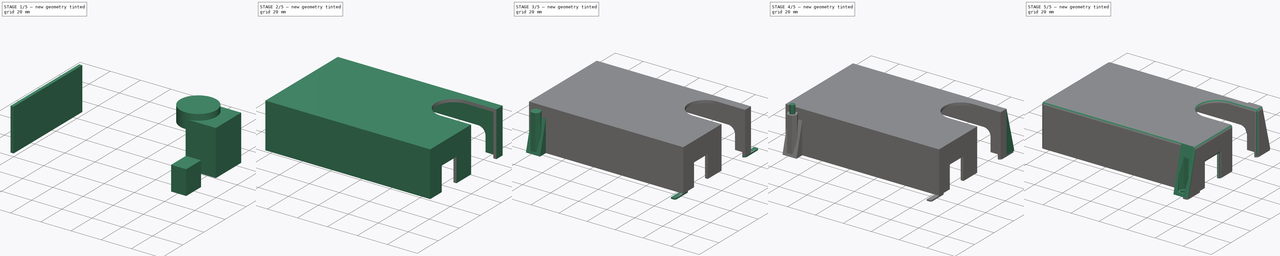
[diagram: build sequence overview — one tinted view per stage of 5, left to right]
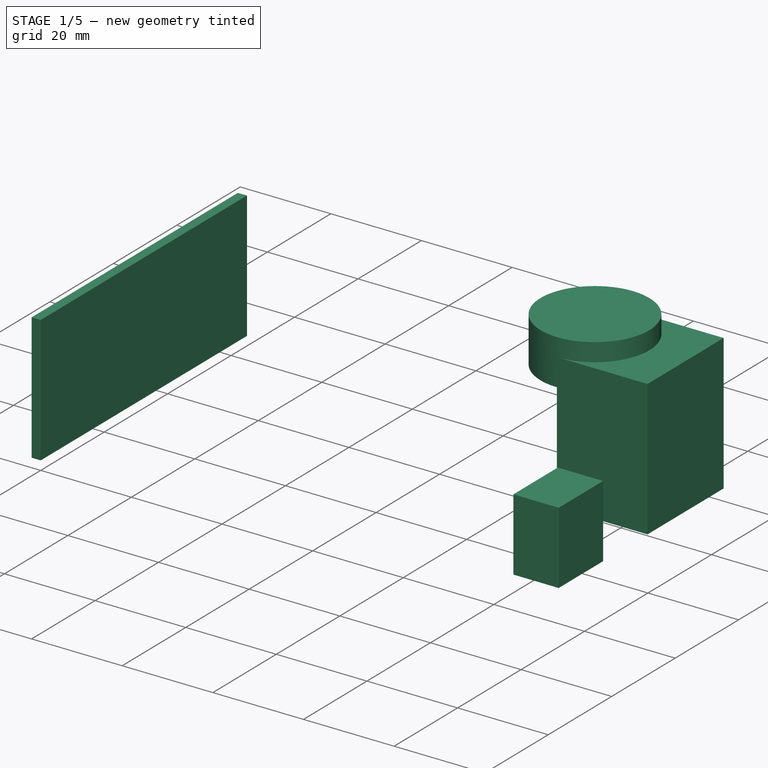
[diagram: stage 1 of 5 — iso view after this stage's code; geometry added in this stage tinted green]
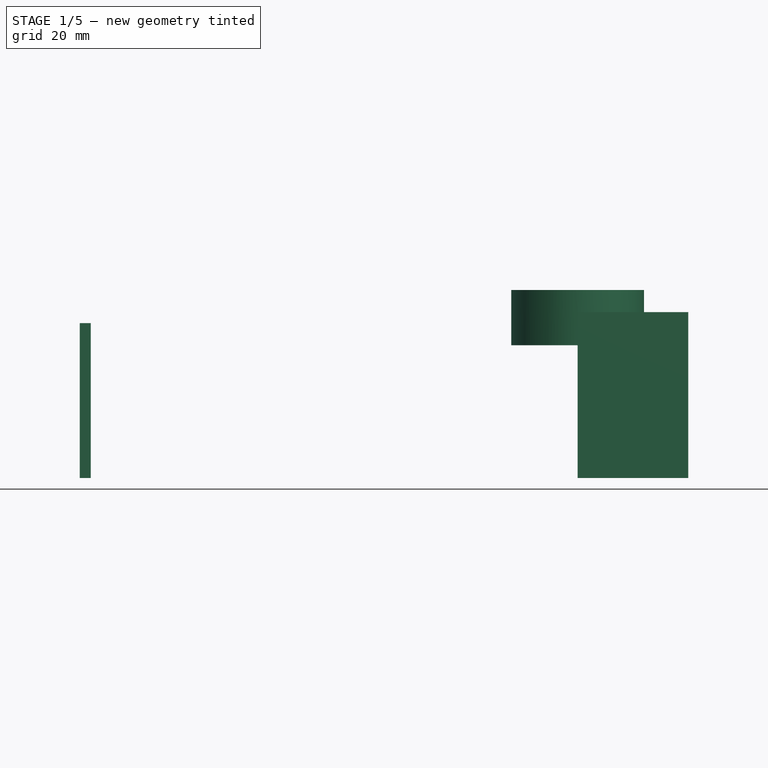
[diagram: stage 1 of 5 — front view after this stage's code; geometry added in this stage tinted green]
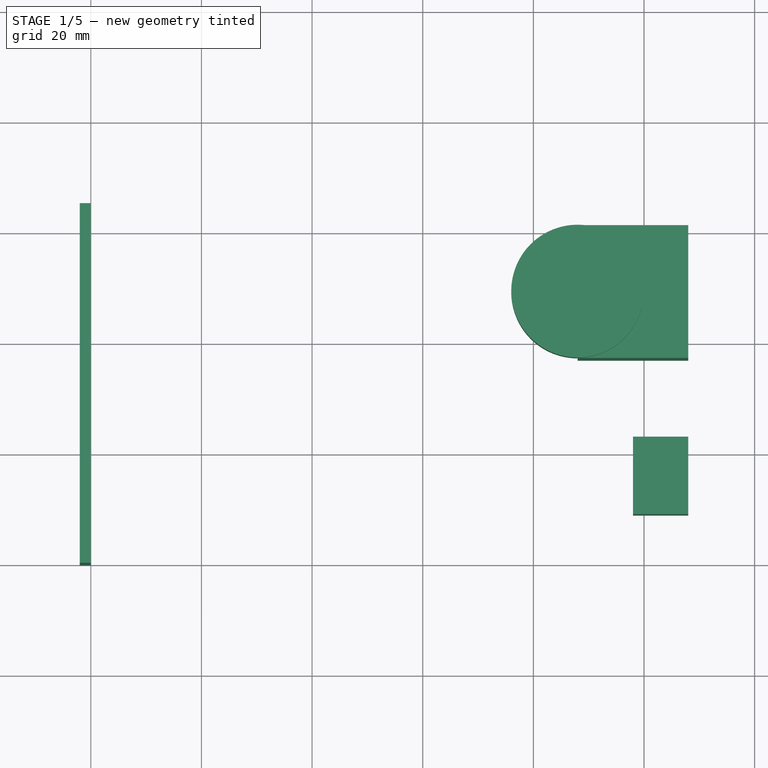
[diagram: stage 1 of 5 — top view after this stage's code; geometry added in this stage tinted green]
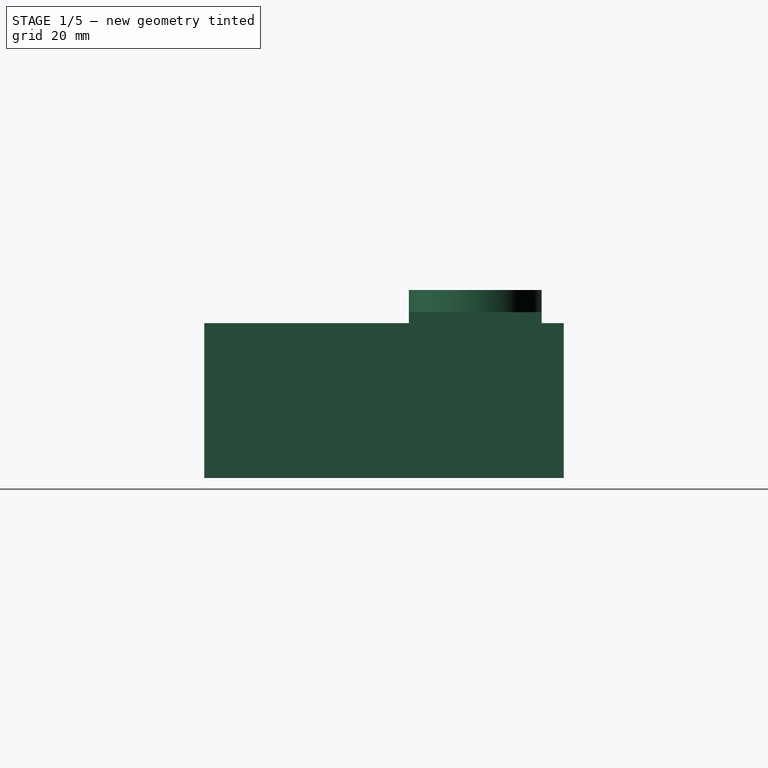
[diagram: stage 1 of 5 — right view after this stage's code; geometry added in this stage tinted green]
FCSTD DOCUMENT  (FreeCAD 0.15R4142 (Git))
Label: Cycl_Tapa_Electrónica
License: CC-BY 3.0
LicenseURL: http://creativecommons.org/licenses/by/3.0/
objects: Sketcher::SketchObject×7, Part::Box×6, PartDesign::Pad×5, Part::MultiFuse×5, Part::Cut×4, Part::Cylinder×2, Part::Thickness×1, PartDesign::Pocket×1, Part::Mirroring×1, Part::Fillet×1
note: 39 computed .brp shape members not serialized (recipe doc carries the construction recipe); baked Part::Feature solids carry a one-line shape summary decoded from their .brp

FEATURE [Part::Box] Box001  label="Hueco_conector_alimentacion"
  Height = 30
  Length = 20
  Placement = pos=(88,37,0) rot=(0,0,1;0rad)
  Width = 24
FEATURE [Part::Box] Box002  label="Hueco_USB"
  Height = 16
  Length = 10
  Placement = pos=(98,9,0) rot=(0,0,1;0rad)
  Width = 14
FEATURE [Part::Box] Box003  label="Hueco_LCD"
  Height = 28
  Length = 2
  Placement = pos=(-2,0,0) rot=(0,0,1;0rad)
  Width = 65
FEATURE [Part::Cylinder] Cylinder
  Angle = 360
  Height = 10
  Placement = pos=(88,49,24) rot=(0,0,1;0rad)
  Radius = 12
FEATURE [Part::MultiFuse] Fusion
  Shapes = -> [Cylinder,Box001,Box002,Box003]
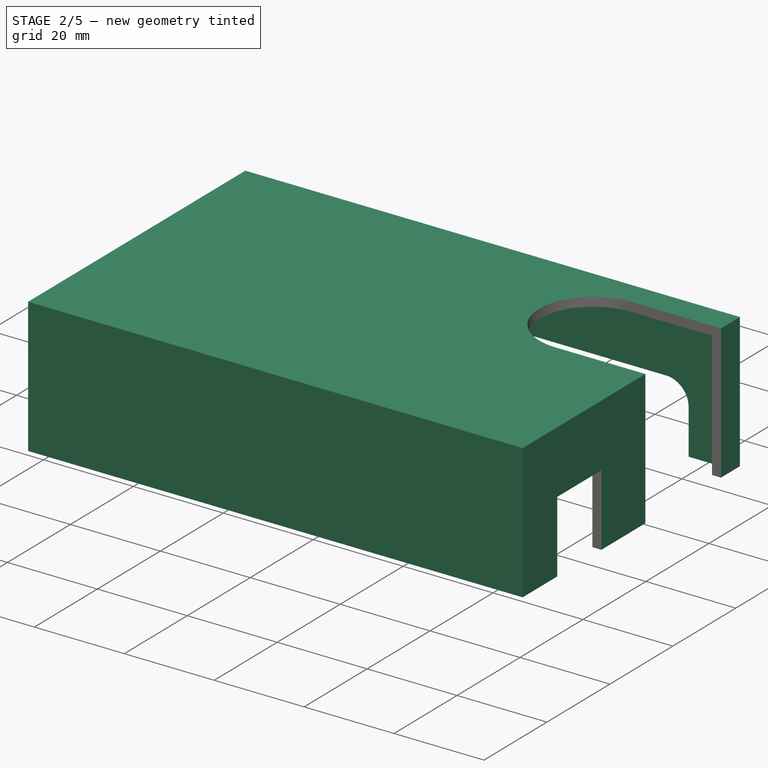
[diagram: stage 2 of 5 — iso view after this stage's code; geometry added in this stage tinted green]
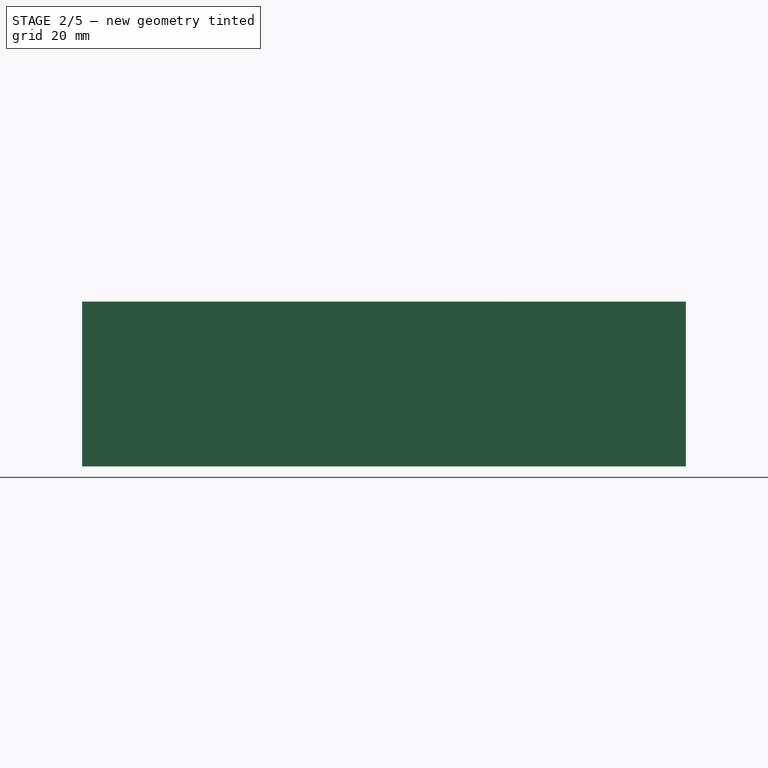
[diagram: stage 2 of 5 — front view after this stage's code; geometry added in this stage tinted green]
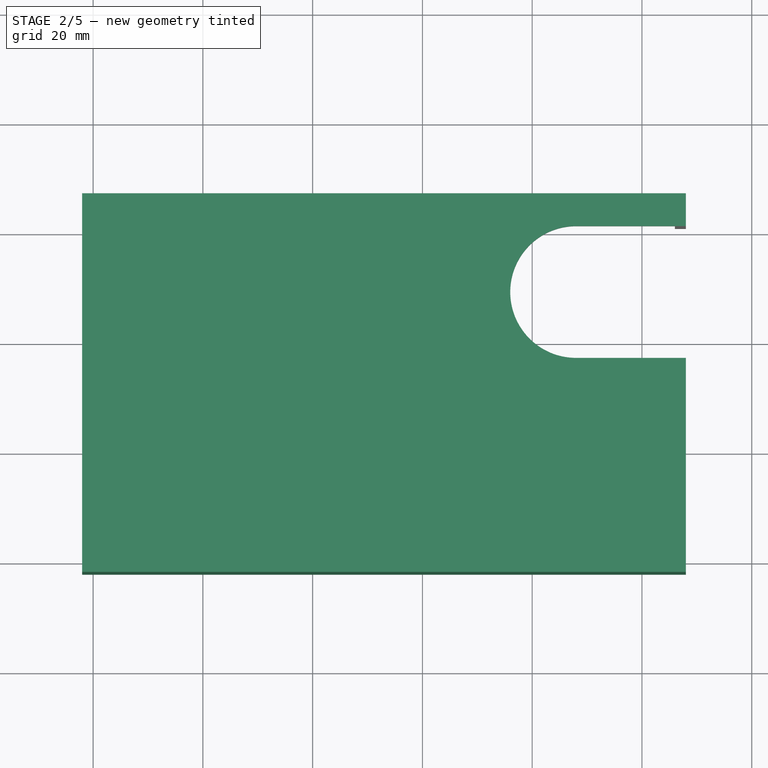
[diagram: stage 2 of 5 — top view after this stage's code; geometry added in this stage tinted green]
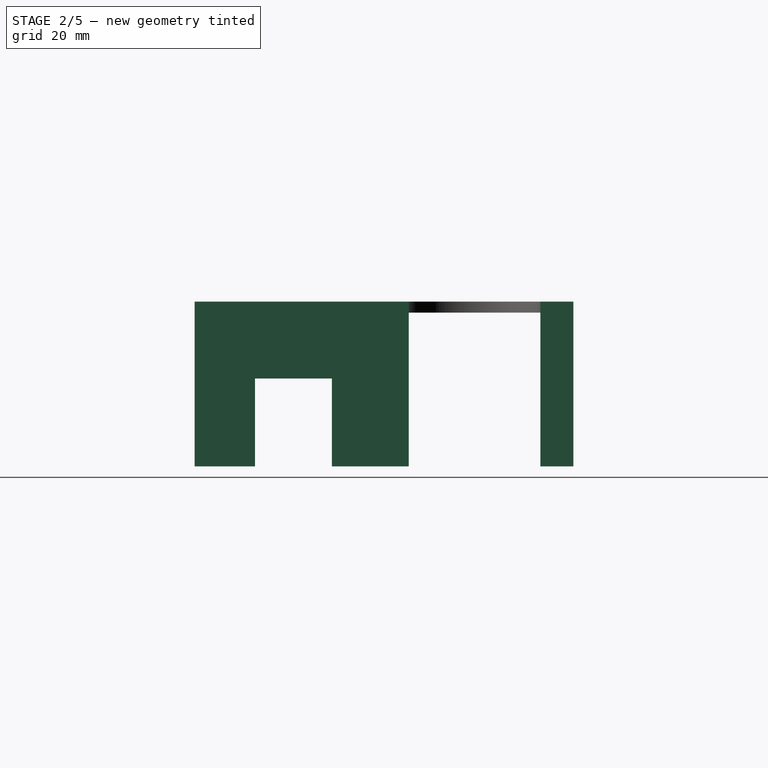
[diagram: stage 2 of 5 — right view after this stage's code; geometry added in this stage tinted green]
FEATURE [Part::Box] Box  label="Cubo_Madre"
  Height = 28
  Length = 106
  Width = 65
FEATURE [Part::Thickness] Thickness  label="[Vaciado]_Cubo_madre"
  Faces = -> Box [Face5]
  Intersection = false
  Join = 2
  Mode = 0
  SelfIntersection = false
  Value = 2
FEATURE [Part::Cut] Cut  label="[Diferencia]Cubo_madre_huecos"
  Base = -> Thickness
FEATURE [Sketcher::SketchObject] Sketch003  label="[Croquis]_Hueco_lateral"
  ExternalGeometry = -> [Cut]
  Placement = pos=(0,67,0) rot=(0,0.707107,0.707107;3.14159rad)
  Support = -> Cut [Face18]
  sketch-geometry (12):
    g0: LineSegment StartX=-93 StartY=15 StartZ=0 EndX=-58 EndY=15 EndZ=0
    g1: LineSegment StartX=-98 StartY=10 StartZ=0 EndX=-98 EndY=0 EndZ=0
    g2: ArcOfCircle CenterX=-93 CenterY=10 CenterZ=0 NormalX=0 NormalY=0 NormalZ=1 Radius=5 StartAngle=1.5708 EndAngle=3.14159
    g3: LineSegment [constr] StartX=-82.618 StartY=15 StartZ=0 EndX=-82.618 EndY=0 EndZ=0
    g4: ArcOfCircle CenterX=-58 CenterY=29.1478 CenterZ=0 NormalX=0 NormalY=0 NormalZ=1 Radius=14.1478 StartAngle=4.71239 EndAngle=5.34859
    g5: ArcOfCircle CenterX=-24.5941 CenterY=-16.0772 CenterZ=0 NormalX=0 NormalY=0 NormalZ=1 Radius=42.0772 StartAngle=0.934594 EndAngle=2.207
    g6: LineSegment [constr] StartX=-49.5941 StartY=17.7679 StartZ=0 EndX=0.405852 EndY=17.7679 EndZ=0
    g7: LineSegment [constr] StartX=-108 StartY=0 StartZ=0 EndX=-98 EndY=0 EndZ=0
    g8: LineSegment [constr] StartX=-24.5941 StartY=26 StartZ=0 EndX=-24.5941 EndY=0 EndZ=0
    g9: ArcOfCircle CenterX=1 CenterY=18.5723 CenterZ=0 NormalX=0 NormalY=0 NormalZ=1 Radius=1 StartAngle=4.07618 EndAngle=6.28319
    g10: LineSegment StartX=-98 StartY=0 StartZ=0 EndX=2 EndY=0 EndZ=0
    g11: LineSegment StartX=2 StartY=18.5723 StartZ=0 EndX=2 EndY=0 EndZ=0
  constraints (36):
    c: Horizontal(g0)
    c: PointOnObject(g1,g-3)
    c: Vertical(g1)
    c: Tangent(g1,g2)
    c: Tangent(g0,g2)
    c: PointOnObject(g3,g0)
    c: PointOnObject(g3,g-3)
    c: Vertical(g3)
    c: DistanceY(g3) = -15
    c: Radius(g2) = 5
    c: DistanceX(g0) = 35
    c: Coincident(g4,g0)
    c: Coincident(g5,g4)
    c: Tangent(g4,g0)
    c: Tangent(g4,g5)
    c: Coincident(g6,g4)
    c: Coincident(g6,g5)
    c: Horizontal(g6)
    c: Coincident(g7,g-6)
    c: Coincident(g7,g1)
    c: DistanceX(g7) = 10
    c: PointOnObject(g8,g5)
    c: PointOnObject(g8,g-3)
    c: Vertical(g8)
    c: DistanceY(g8) = -26
    c: Symmetric(g4,g5,g8)
    c: Coincident(g9,g5)
    c: PointOnObject(g9,g-4)
    c: Tangent(g9,g5)
    c: Tangent(g9,g-4)
    c: Radius(g9) = 1
    c: DistanceX(g6) = 50
    c: Coincident(g10,g1)
    c: Coincident(g10,g-4)
    c: Coincident(g11,g9)
    c: Coincident(g11,g10)
FEATURE [PartDesign::Pocket] Pocket  label="[Extrusion]_Hueco_lateral"
  Length = 5
  Sketch = -> Sketch003
  Type = 0
FEATURE [Part::Cut] Cut008
  Base = -> Pocket
  Tool = -> Fusion
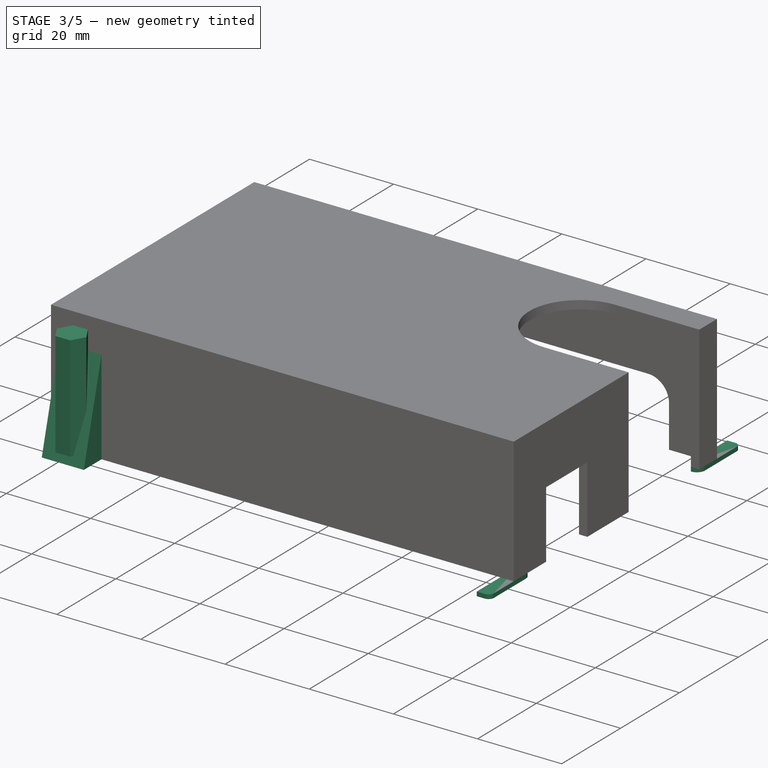
[diagram: stage 3 of 5 — iso view after this stage's code; geometry added in this stage tinted green]
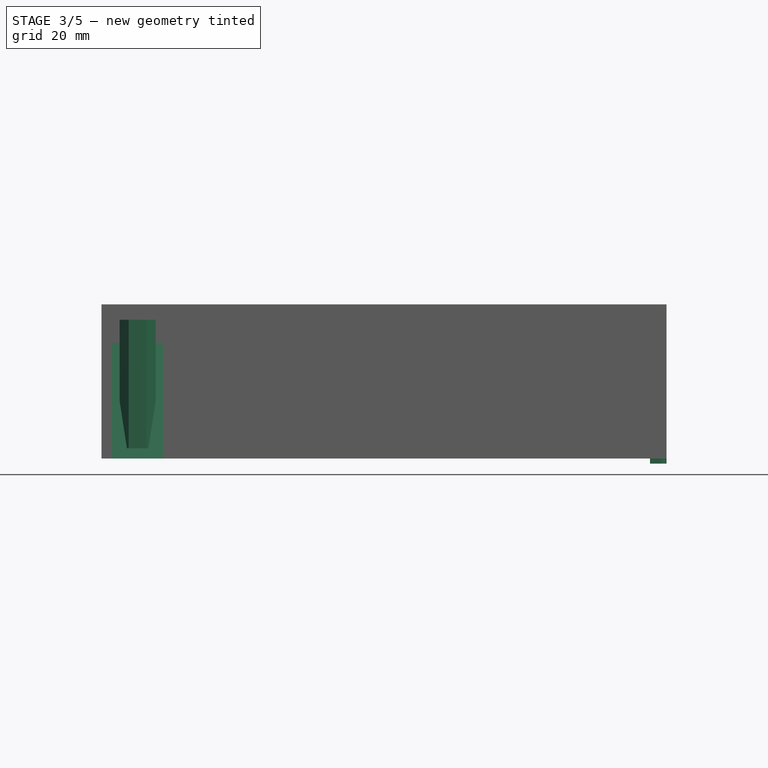
[diagram: stage 3 of 5 — front view after this stage's code; geometry added in this stage tinted green]
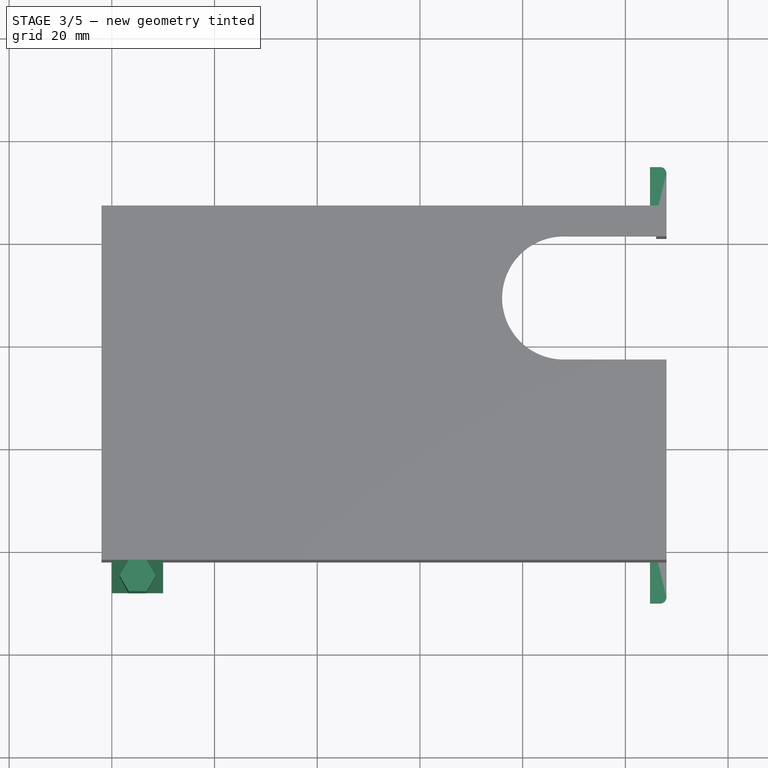
[diagram: stage 3 of 5 — top view after this stage's code; geometry added in this stage tinted green]
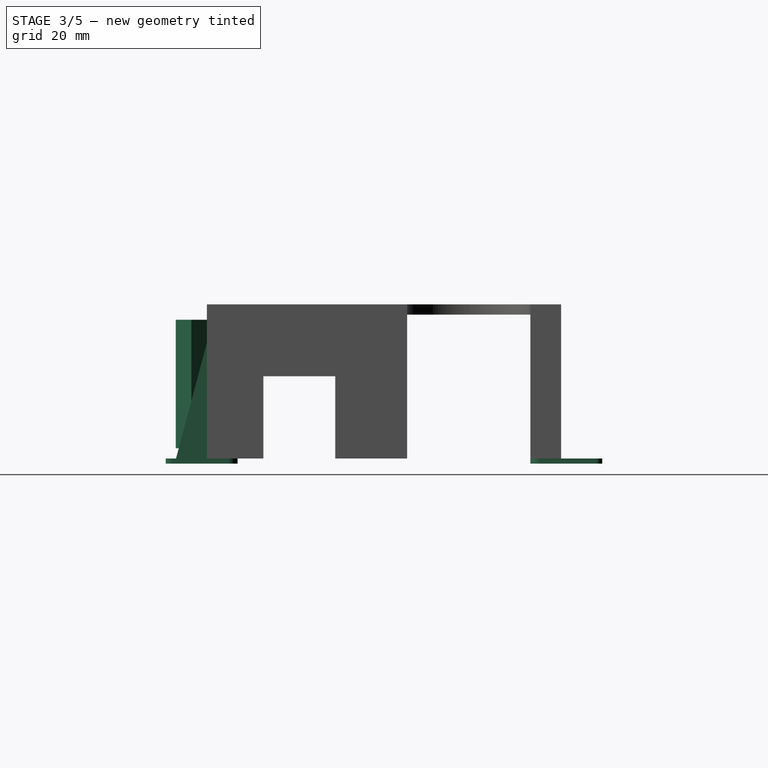
[diagram: stage 3 of 5 — right view after this stage's code; geometry added in this stage tinted green]
FEATURE [Sketcher::SketchObject] Sketch005
  Placement = pos=(-1.5,3,2) rot=(0,0,1;0rad)
  sketch-geometry (7):
    g0: LineSegment StartX=10.0201 StartY=-8.01628 StartZ=0 EndX=8.2701 EndY=-4.98519 EndZ=0
    g1: LineSegment StartX=8.2701 StartY=-4.98519 StartZ=0 EndX=4.7701 EndY=-4.98519 EndZ=0
    g2: LineSegment StartX=4.7701 StartY=-4.98519 StartZ=0 EndX=3.0201 EndY=-8.01628 EndZ=0
    g3: LineSegment StartX=3.0201 StartY=-8.01628 StartZ=0 EndX=4.7701 EndY=-11.0474 EndZ=0
    g4: LineSegment StartX=4.7701 StartY=-11.0474 StartZ=0 EndX=8.2701 EndY=-11.0474 EndZ=0
    g5: LineSegment StartX=8.2701 StartY=-11.0474 StartZ=0 EndX=10.0201 EndY=-8.01628 EndZ=0
    g6: Circle [constr] CenterX=6.5201 CenterY=-8.01628 CenterZ=0 NormalX=0 NormalY=0 NormalZ=1 Radius=3.5
  constraints (15):
    c: Coincident(g0,g1)
    c: Coincident(g1,g2)
    c: Coincident(g2,g3)
    c: Coincident(g3,g4)
    c: Coincident(g4,g5)
    c: Coincident(g5,g0)
    c: Equal(g0, g1-g5) x5
    c: PointOnObject(g0,g6)
    c: PointOnObject(g1,g6)
    c: PointOnObject(g2,g6)
    c: PointOnObject(g3,g6)
    c: PointOnObject(g4,g6)
    c: PointOnObject(g5,g6)
    c: Radius(g6) = 3.5
    c: Horizontal(g4)
FEATURE [PartDesign::Pad] Pad003
  Length = 25
  Length2 = 100
  Placement = pos=(-1.5,3,2) rot=(0,0,1;0rad)
  Sketch = -> Sketch005
  Type = 0
FEATURE [PartDesign::Pad] Pad004  label="[Extrusion]_Sujeccion001"
  Length = 10
  Length2 = 100
  Placement = pos=(0,0,0) rot=(0.57735,0.57735,0.57735;2.0944rad)
  Sketch = -> Sketch
  Type = 0
FEATURE [Sketcher::SketchObject] Sketch006
  Placement = pos=(0,0,0) rot=(1,0,0;3.14159rad)
  sketch-geometry (8):
    g0: LineSegment StartX=104.8 StartY=-65 StartZ=0 EndX=104.8 EndY=-75 EndZ=0
    g1: ArcOfCircle CenterX=104.8 CenterY=-63.8 CenterZ=0 NormalX=0 NormalY=0 NormalZ=1 Radius=1.2 StartAngle=4.71239 EndAngle=6.28319
    g2: ArcOfCircle CenterX=106.1 CenterY=-62.9 CenterZ=0 NormalX=0 NormalY=0 NormalZ=1 Radius=1.9 StartAngle=0 EndAngle=1.5708
    g3: LineSegment StartX=106.1 StartY=-61 StartZ=0 EndX=106 EndY=-61 EndZ=0
    g4: LineSegment StartX=106 StartY=-61 StartZ=0 EndX=106 EndY=-63.8 EndZ=0
    g5: LineSegment StartX=108 StartY=-62.9 StartZ=0 EndX=108 EndY=-73.7581 EndZ=0
    g6: LineSegment StartX=106.8 StartY=-75 StartZ=0 EndX=104.8 EndY=-75 EndZ=0
    g7: ArcOfCircle CenterX=106.757 CenterY=-73.7581 CenterZ=0 NormalX=0 NormalY=0 NormalZ=1 Radius=1.24267 StartAngle=4.74673 EndAngle=6.28318
  constraints (11):
    c: Vertical(g0)
    c: Coincident(g1,g0)
    c: Coincident(g3,g2)
    c: Coincident(g4,g3)
    c: Coincident(g4,g1)
    c: Vertical(g4)
    c: Coincident(g5,g2)
    c: Vertical(g5)
    c: Coincident(g6,g0)
    c: Coincident(g7,g5)
    c: Coincident(g7,g6)
FEATURE [PartDesign::Pad] Pad005
  Length = 1
  Length2 = 100
  Placement = pos=(0,0,0) rot=(1,0,0;3.14159rad)
  Sketch = -> Sketch006
  Type = 0
FEATURE [Sketcher::SketchObject] Sketch007
  Placement = pos=(0,0,0) rot=(1,0,0;3.14159rad)
  sketch-geometry (8):
    g0: LineSegment StartX=104.8 StartY=-65 StartZ=0 EndX=104.8 EndY=-75 EndZ=0
    g1: ArcOfCircle CenterX=104.8 CenterY=-63.8 CenterZ=0 NormalX=0 NormalY=0 NormalZ=1 Radius=1.2 StartAngle=4.71239 EndAngle=6.28319
    g2: ArcOfCircle CenterX=106.1 CenterY=-62.9 CenterZ=0 NormalX=0 NormalY=0 NormalZ=1 Radius=1.9 StartAngle=0 EndAngle=1.5708
    g3: LineSegment StartX=106.1 StartY=-61 StartZ=0 EndX=106 EndY=-61 EndZ=0
    g4: LineSegment StartX=106 StartY=-61 StartZ=0 EndX=106 EndY=-63.8 EndZ=0
    g5: LineSegment StartX=108 StartY=-62.9 StartZ=0 EndX=108 EndY=-73.7581 EndZ=0
    g6: LineSegment StartX=106.8 StartY=-75 StartZ=0 EndX=104.8 EndY=-75 EndZ=0
    g7: ArcOfCircle CenterX=106.757 CenterY=-73.7581 CenterZ=0 NormalX=0 NormalY=0 NormalZ=1 Radius=1.24267 StartAngle=4.74673 EndAngle=6.28318
  constraints (11):
    c: Vertical(g0)
    c: Coincident(g1,g0)
    c: Coincident(g3,g2)
    c: Coincident(g4,g3)
    c: Coincident(g4,g1)
    c: Vertical(g4)
    c: Coincident(g5,g2)
    c: Vertical(g5)
    c: Coincident(g6,g0)
    c: Coincident(g7,g5)
    c: Coincident(g7,g6)
FEATURE [PartDesign::Pad] Pad006
  Length = 1
  Length2 = 100
  Placement = pos=(0,0,0) rot=(1,0,0;3.14159rad)
  Sketch = -> Sketch007
  Type = 0
FEATURE [Part::Mirroring] Part__Mirroring  label="Pad006 (Mirror #1)"
  Base = (0,0,0)
  Normal = (0,1,0)
  Placement = pos=(0,65,0) rot=(0,0,1;0rad)
  Source = -> Pad006
FEATURE [Part::MultiFuse] Fusion006
  Shapes = -> [Part__Mirroring,Pad005]
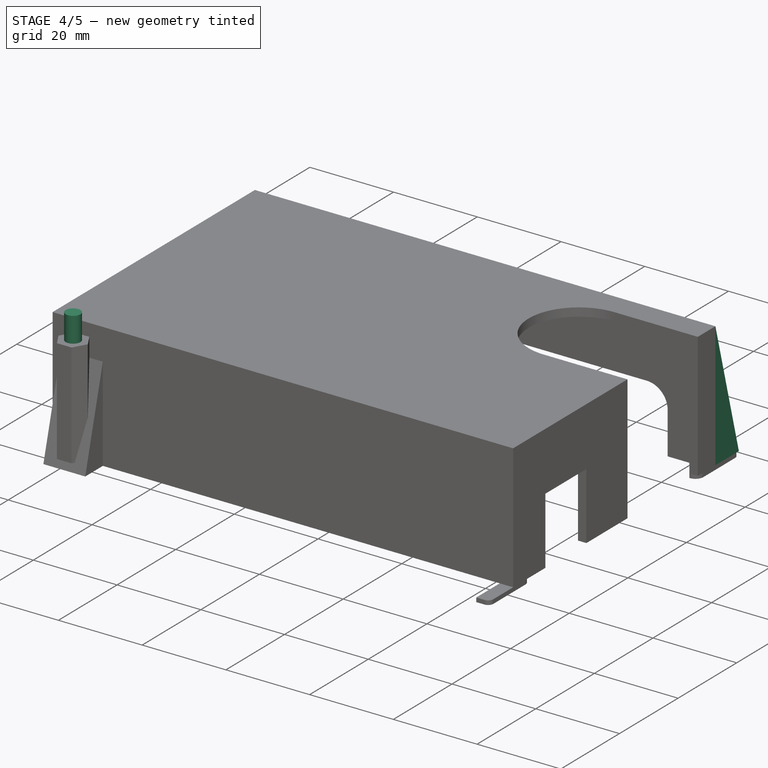
[diagram: stage 4 of 5 — iso view after this stage's code; geometry added in this stage tinted green]
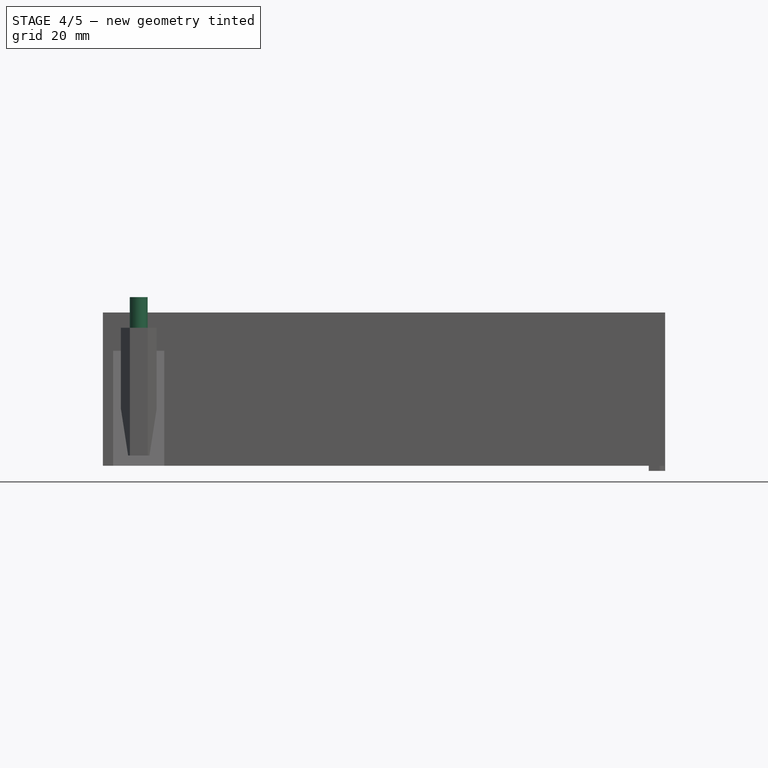
[diagram: stage 4 of 5 — front view after this stage's code; geometry added in this stage tinted green]
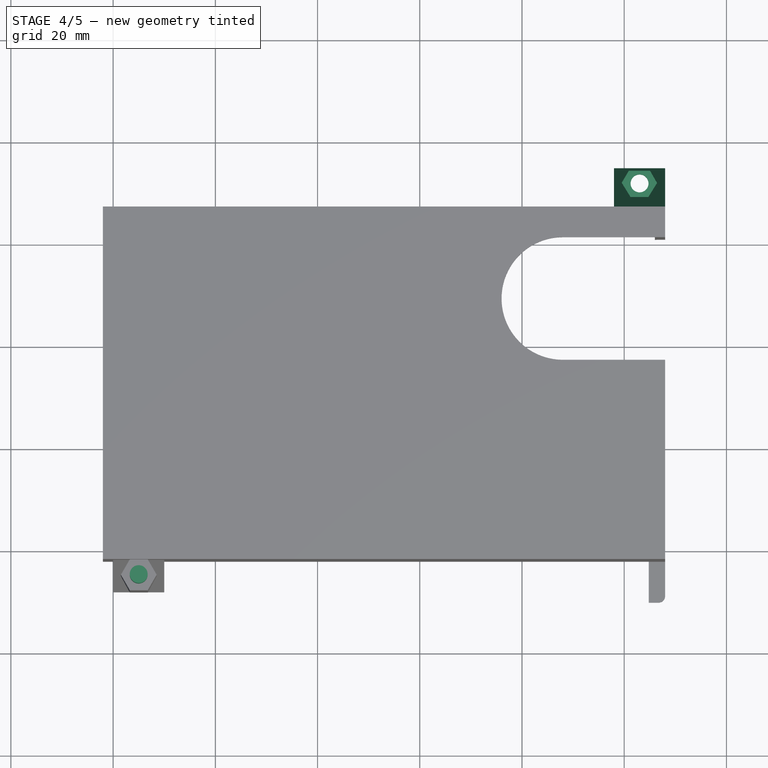
[diagram: stage 4 of 5 — top view after this stage's code; geometry added in this stage tinted green]
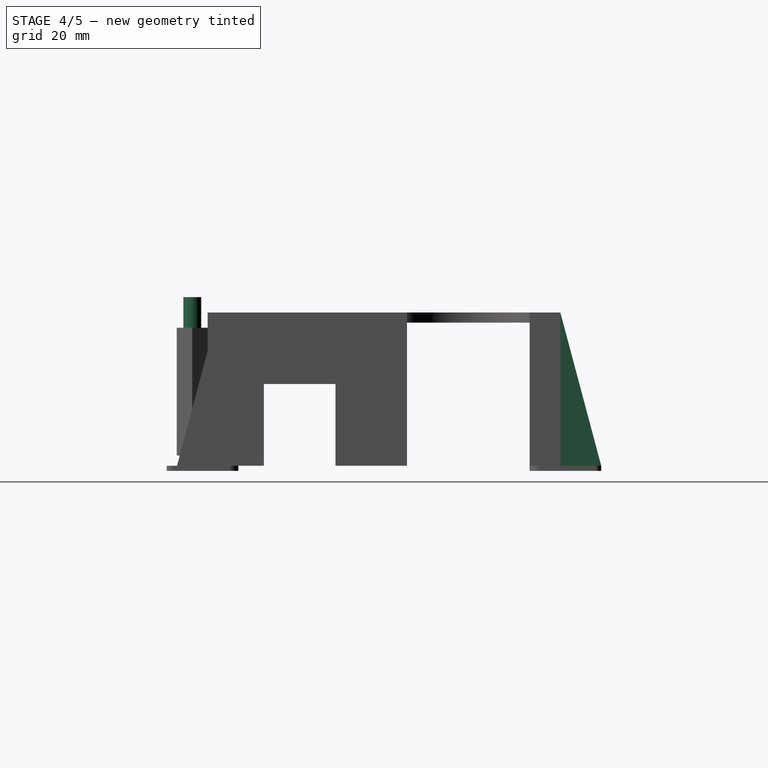
[diagram: stage 4 of 5 — right view after this stage's code; geometry added in this stage tinted green]
FEATURE [Sketcher::SketchObject] Sketch  label="[Croquis]_Sujeccion"
  Placement = pos=(0,0,0) rot=(0.57735,0.57735,0.57735;2.0944rad)
  sketch-geometry (3):
    g0: LineSegment StartX=0 StartY=0 StartZ=0 EndX=0 EndY=30 EndZ=0
    g1: LineSegment StartX=0 StartY=0 StartZ=0 EndX=-8 EndY=0 EndZ=0
    g2: LineSegment StartX=0 StartY=30 StartZ=0 EndX=-8 EndY=0 EndZ=0
  constraints (8):
    c: Coincident(g0,g-1)
    c: Vertical(g0)
    c: DistanceY(g0) = 30
    c: Coincident(g1,g-1)
    c: Horizontal(g1)
    c: Coincident(g2,g0)
    c: Coincident(g2,g1)
    c: DistanceX(g1) = -8
FEATURE [Sketcher::SketchObject] Sketch001
  Placement = pos=(0,0,30) rot=(0,0,1;0rad)
  sketch-geometry (10):
    g0: LineSegment [constr] StartX=108 StartY=10 StartZ=0 EndX=88 EndY=10 EndZ=0
    g1: LineSegment [constr] StartX=88 StartY=10 StartZ=0 EndX=88 EndY=0 EndZ=0
    g2: LineSegment [constr] StartX=88 StartY=10 StartZ=0 EndX=16 EndY=10 EndZ=0
    g3: LineSegment [constr] StartX=16 StartY=10 StartZ=0 EndX=16 EndY=24 EndZ=0
    g4: LineSegment [constr] StartX=16 StartY=24 StartZ=0 EndX=88 EndY=24 EndZ=0
    g5: LineSegment [constr] StartX=88 StartY=24 StartZ=0 EndX=88 EndY=10 EndZ=0
    g6: ArcOfCircle CenterX=17.5 CenterY=22.5 CenterZ=0 NormalX=0 NormalY=0 NormalZ=1 Radius=1.5 StartAngle=6.28319 EndAngle=9.42478
    g7: ArcOfCircle CenterX=17.5 CenterY=11.5 CenterZ=0 NormalX=0 NormalY=0 NormalZ=1 Radius=1.5 StartAngle=3.14159 EndAngle=6.28319
    g8: LineSegment StartX=16 StartY=22.5 StartZ=0 EndX=16 EndY=11.5 EndZ=0
    g9: LineSegment StartX=19 StartY=22.5 StartZ=0 EndX=19 EndY=11.5 EndZ=0
  constraints (32):
    c: Horizontal(g0)
    c: PointOnObject(g1,g0)
    c: PointOnObject(g1,g-1)
    c: Coincident(g0,g1)
    c: DistanceX(g0) = -20
    c: Vertical(g1)
    c: DistanceY(g1) = -10
    c: Coincident(g2,g3)
    c: Coincident(g3,g4)
    c: Coincident(g4,g5)
    c: Coincident(g5,g2)
    c: Horizontal(g2)
    c: Horizontal(g4)
    c: Vertical(g3)
    c: Vertical(g5)
    c: Coincident(g2,g0)
    c: DistanceX(g4) = 72
    c: DistanceY(g3) = 14
    c: Tangent(g6,g8)
    c: Tangent(g6,g9)
    c: Tangent(g7,g8)
    c: Tangent(g7,g9)
    c: Coincident(g6,g9)
    c: Coincident(g6,g8)
    c: Coincident(g8,g7)
    c: Coincident(g9,g7)
    c: Vertical(g8)
    c: Equal(g6,g7)
    c: Tangent(g7,g2)
    c: Tangent(g4,g6)
    c: Radius(g6) = 1.5
    c: PointOnObject(g6,g3)
FEATURE [Sketcher::SketchObject] Sketch002
  Placement = pos=(0,0,30) rot=(0,0,1;0rad)
  sketch-geometry (10):
    g0: LineSegment [constr] StartX=106 StartY=65.2792 StartZ=0 EndX=86 EndY=65.2792 EndZ=0
    g1: LineSegment [constr] StartX=86 StartY=65.2792 StartZ=0 EndX=86 EndY=53.2792 EndZ=0
    g2: LineSegment [constr] StartX=86 StartY=53.2792 StartZ=0 EndX=51 EndY=53.2792 EndZ=0
    g3: LineSegment [constr] StartX=51 StartY=53.2792 StartZ=0 EndX=51 EndY=33.2792 EndZ=0
    g4: LineSegment [constr] StartX=51 StartY=33.2792 StartZ=0 EndX=86 EndY=33.2792 EndZ=0
    g5: LineSegment [constr] StartX=86 StartY=33.2792 StartZ=0 EndX=86 EndY=53.2792 EndZ=0
    g6: ArcOfCircle CenterX=52.5 CenterY=34.7792 CenterZ=0 NormalX=0 NormalY=0 NormalZ=1 Radius=1.5 StartAngle=3.14158 EndAngle=6.2832
    g7: ArcOfCircle CenterX=52.5 CenterY=51.7792 CenterZ=0 NormalX=0 NormalY=0 NormalZ=1 Radius=1.5 StartAngle=8.72796e-07 EndAngle=3.14159
    g8: LineSegment StartX=54 StartY=34.7793 StartZ=0 EndX=54 EndY=51.7792 EndZ=0
    g9: LineSegment StartX=51 StartY=34.7793 StartZ=0 EndX=51 EndY=51.7792 EndZ=0
  constraints (30):
    c: Horizontal(g0)
    c: DistanceX(g0) = -20
    c: Coincident(g1,g0)
    c: DistanceY(g1) = -12
    c: Vertical(g1)
    c: Coincident(g2,g3)
    c: Coincident(g3,g4)
    c: Coincident(g4,g5)
    c: Coincident(g5,g2)
    c: Horizontal(g2)
    c: Horizontal(g4)
    c: Vertical(g3)
    c: Vertical(g5)
    c: Coincident(g2,g1)
    c: DistanceX(g2) = -35
    c: DistanceY(g3) = -20
    c: Tangent(g6,g8)
    c: Tangent(g6,g9)
    c: Tangent(g7,g8)
    c: Tangent(g7,g9)
    c: Coincident(g6,g9)
    c: Coincident(g6,g8)
    c: Coincident(g8,g7)
    c: Coincident(g9,g7)
    c: Vertical(g8)
    c: Equal(g6,g7)
    c: Tangent(g7,g2)
    c: PointOnObject(g7,g3)
    c: Radius(g7) = 1.5
    c: Tangent(g6,g4)
FEATURE [Part::Cylinder] Cylinder001  label="Taladro_M3"
  Angle = 360
  Height = 33
  Placement = pos=(5,-5,0) rot=(0,0,1;0rad)
  Radius = 1.75
FEATURE [PartDesign::Pad] Pad  label="[Extrusion]_Sujeccion"
  Length = 10
  Length2 = 100
  Placement = pos=(0,0,0) rot=(0.57735,0.57735,0.57735;2.0944rad)
  Sketch = -> Sketch
  Type = 0
FEATURE [Part::MultiFuse] Fusion001
  Shapes = -> [Pad003,Cylinder001]
FEATURE [Part::MultiFuse] Fusion002
  Shapes = -> [Pad003,Cylinder001]
FEATURE [Part::Cut] Cut007
  Base = -> Pad004
  Placement = pos=(108,67,0) rot=(0,0,1;3.14159rad)
  Tool = -> Fusion002
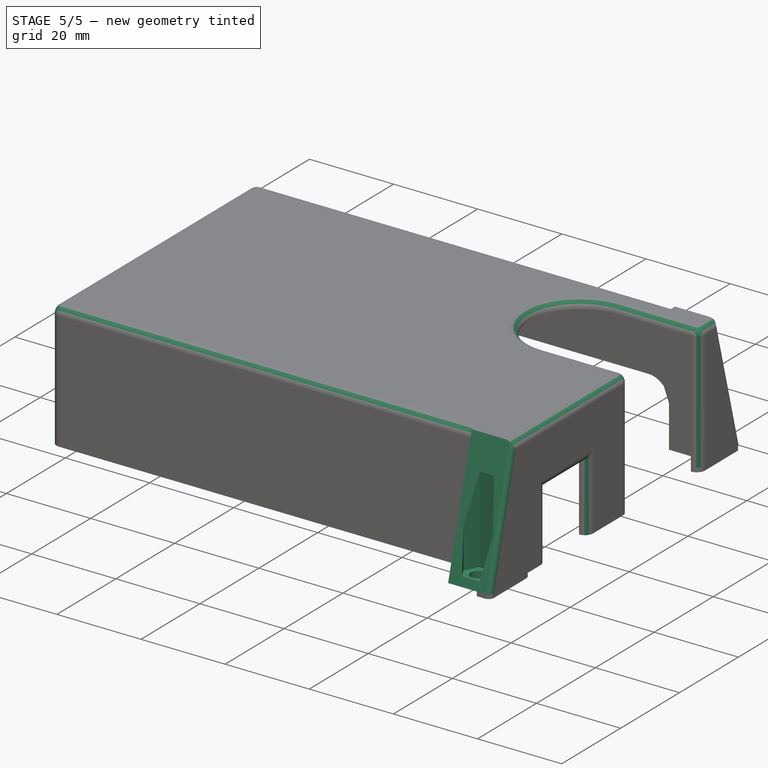
[diagram: stage 5 of 5 — iso view after this stage's code; geometry added in this stage tinted green]
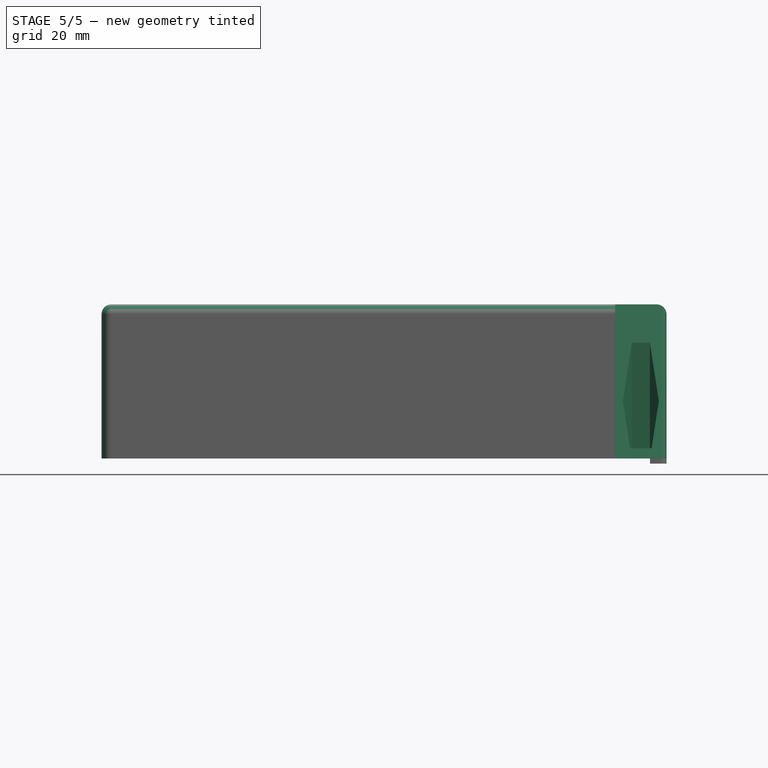
[diagram: stage 5 of 5 — front view after this stage's code; geometry added in this stage tinted green]
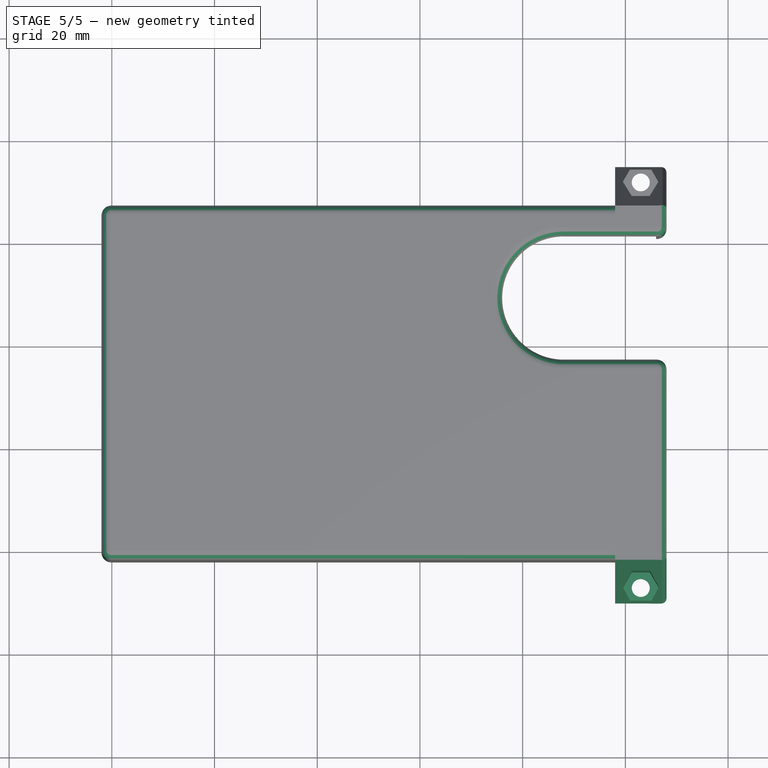
[diagram: stage 5 of 5 — top view after this stage's code; geometry added in this stage tinted green]
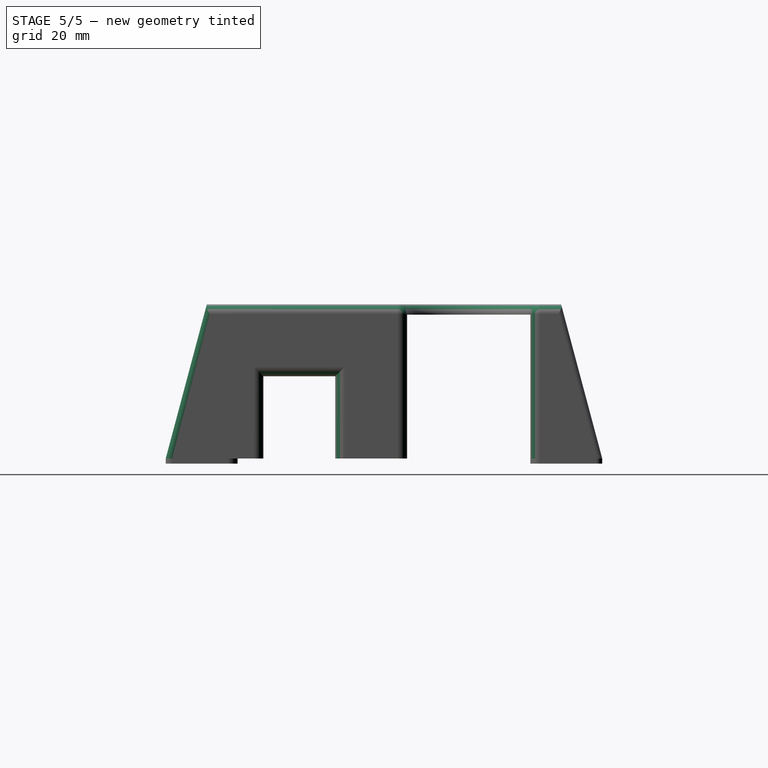
[diagram: stage 5 of 5 — right view after this stage's code; geometry added in this stage tinted green]
FEATURE [Part::Box] Box004  label="Pata_2"
  Height = 0.5
  Length = 2.5
  Placement = pos=(105,-8.5,-0.5) rot=(0,0,1;0rad)
  Width = 8
FEATURE [Part::Cut] Cut006
  Base = -> Pad
  Placement = pos=(98,-2,0) rot=(0,0,1;0rad)
  Tool = -> Fusion001
FEATURE [Part::Box] Box005  label="Pata_1"
  Height = 0.5
  Length = 2.5
  Placement = pos=(105,65.5,-0.5) rot=(0,0,1;0rad)
  Width = 8
FEATURE [Part::MultiFuse] Fusion007
  Shapes = -> [Cut007,Cut006,Cut008,Fusion006]
FEATURE [Part::Fillet] Fillet
  Base = -> Fusion007
  Edges = 17 edges: [Edge24 r=1,Edge31 r=1.9,Edge32 r=1.9,Edge33 r=1.9,Edge34 r=1.9,Edge36 r=1.9,Edge37 r=1.9,Edge38 r=1.9,Edge39 r=1.9,Edge49 r=1.9,Edge52 r=1.9,Edge61 r=1,Edge77 r=1.9,Edge130 r=1.9,Edge138 r=1.9,Edge141 r=1.9,Edge164 r=1.9]
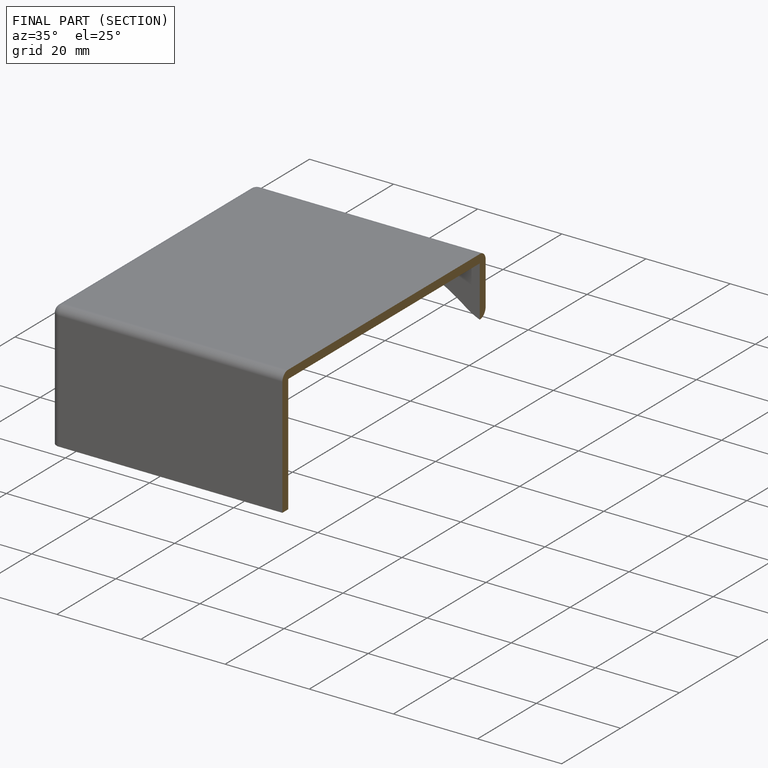
[diagram: finished part — half-section view (interior)]
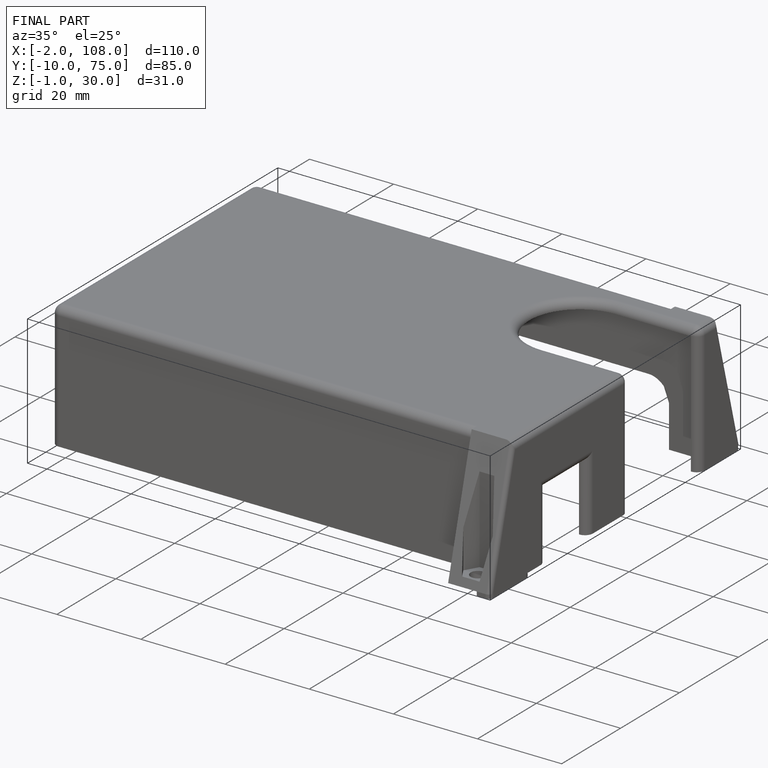
[diagram: finished part — iso view with bounding-box wireframe]
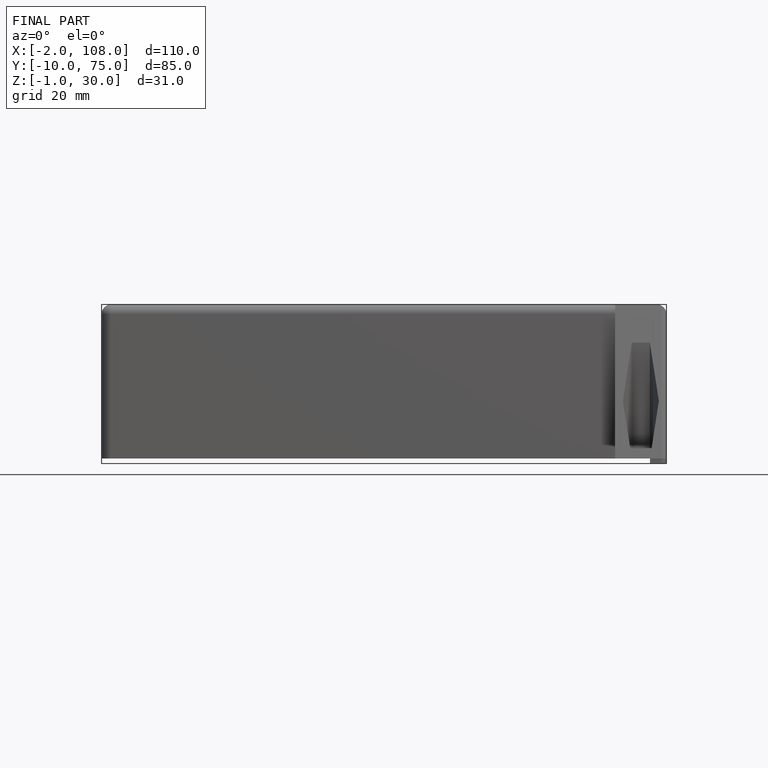
[diagram: finished part — front view with bounding-box wireframe]
